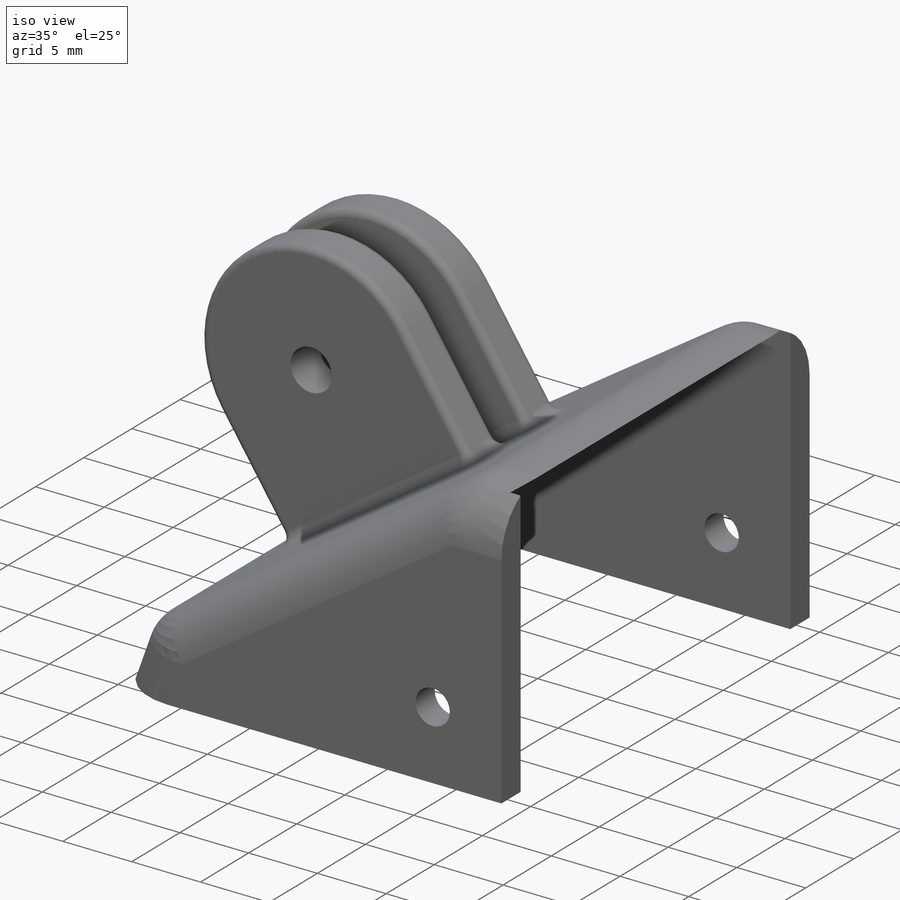
[diagram: iso view]
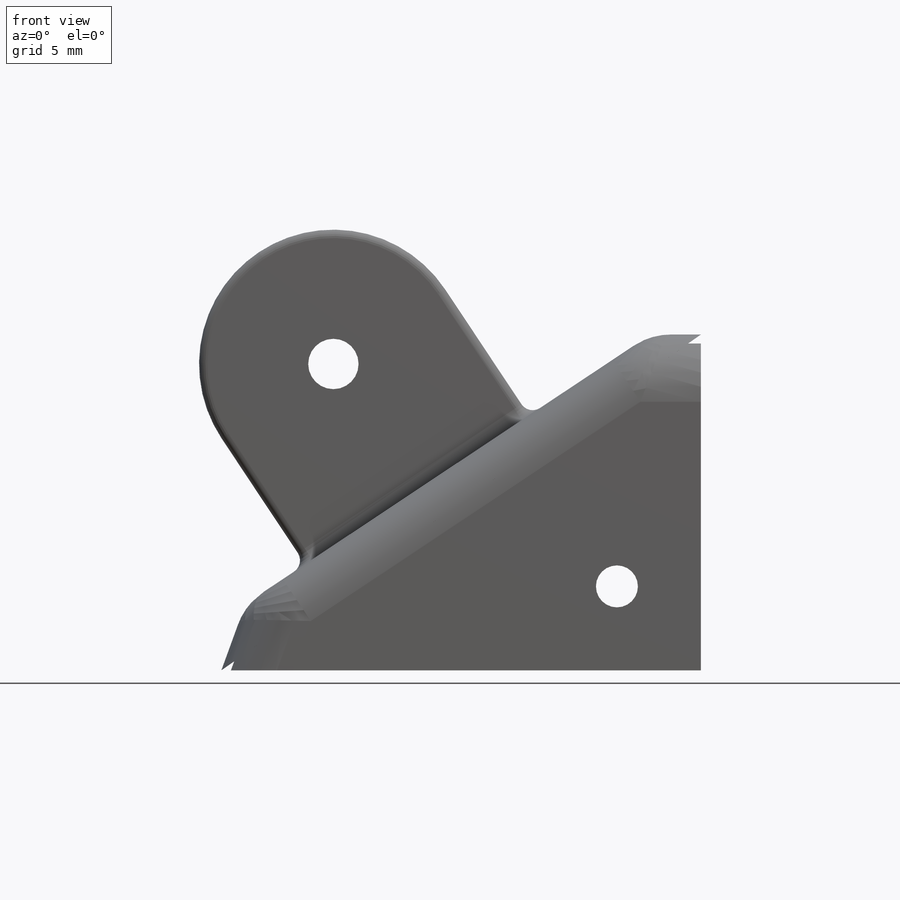
[diagram: front view]
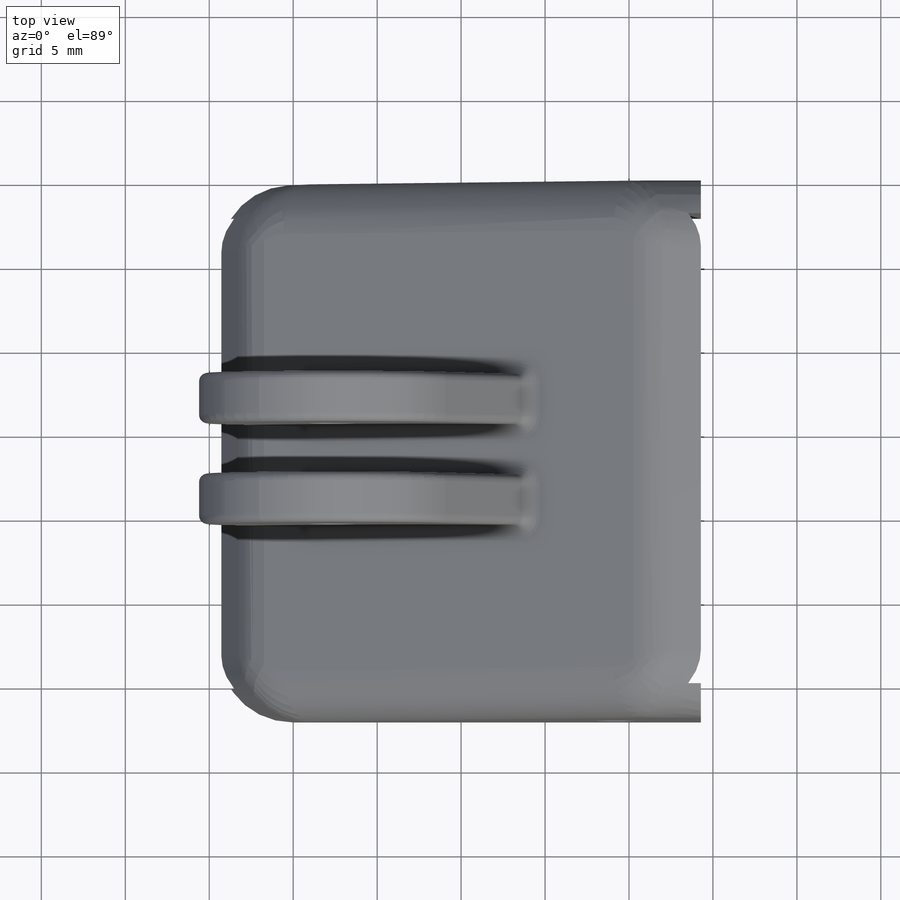
[diagram: top view]
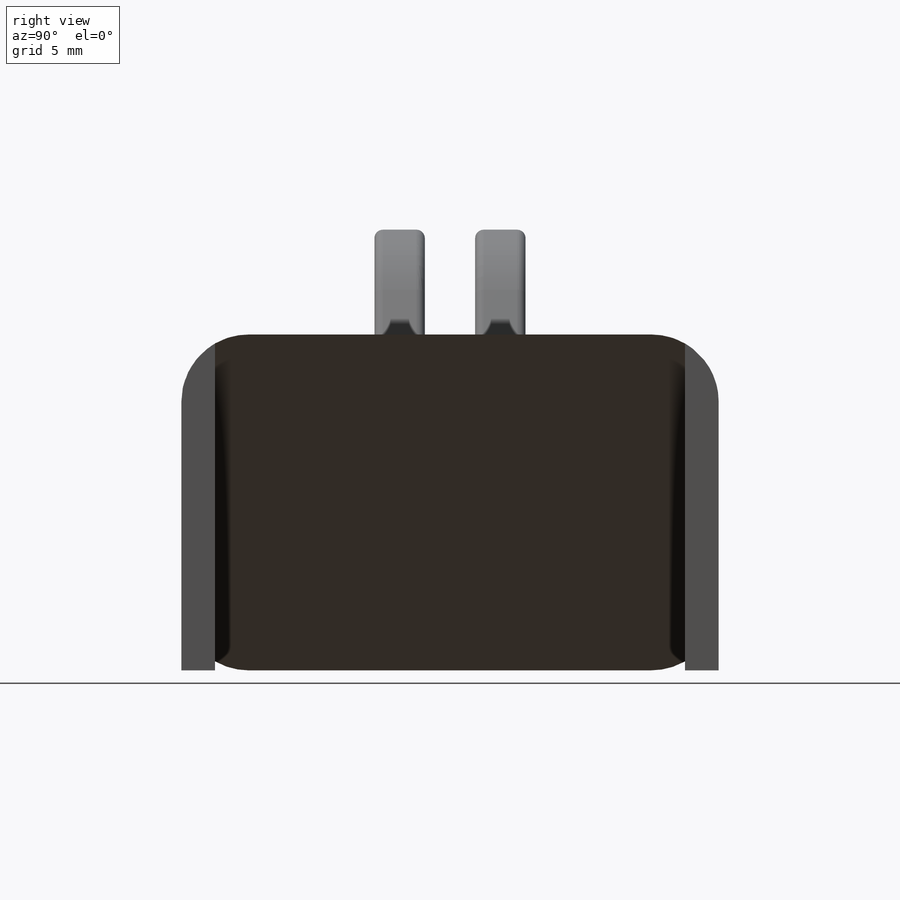
[diagram: right view]
SOLIDWORKS PART (.sldprt)
format: sldprt  version: not decoded by parser v0  size: 474,112 bytes
history: native  units: mm
features: sketch x9, fillet x7, cut_extrude x5, extrude x4, material x1 (+12 scaffold rows collapsed)
feature tree (38):
  scaffold x12  (default folders/planes/origin — collapsed)
  material  "Material <not specified>"
  sketch  "Sketch1"  dims[D1=28.56mm D2=20.0mm]
  extrude  "Boss-Extrude1"  Depth=2mm
  sketch  "Sketch2"  dims[c1.D1=30.0mm c2.D1=35.0deg c2.D2=3.625mm c2.D3=~1.532026mm c3.D2=0.0mm]
  extrude  "Boss-Extrude2"  Depth=28mm
  sketch  "Sketch3"  dims[D1=20.0mm D2=28.56mm]
  extrude  "Boss-Extrude3"  Depth=2mm
  sketch  "Sketch4"  dims[D3=2.5mm D1=5.0mm D2=5.0mm]
  cut_extrude  "Cut-Extrude1"  [1 undecoded]
  sketch  "Sketch5"  dims[c1.D1=3.0mm c1.D2=3.0mm c2.D1=3.0mm]
  cut_extrude  "Cut-Extrude2"  [1 undecoded]
  sketch  "Sketch6"  dims[D1=9.0mm D2=11.5mm D3=16.0mm D4=6.0mm]
  extrude  "Boss-Extrude4"  Depth=17mm
  fillet  "Fillet1"  Radius=8mm
  sketch  "Sketch7"  dims[D3=3.0mm D1=8.0mm D2=8.0mm]
  cut_extrude  "Cut-Extrude3"  [1 undecoded]
  sketch  "Sketch8"  dims[D1=3.0mm D2=3.0mm D3=0.0mm D4=0.0mm]
  cut_extrude  "Cut-Extrude4"  [1 undecoded]
  fillet  "Fillet3"  Radius=0.5mm
  fillet  "Fillet2"  Radius=0.8mm
  sketch  "Sketch9"  dims[c1.D1=~6.824667mm c2.D1=20.0deg]
  cut_extrude  "Cut-Extrude5"  [1 undecoded]
  fillet  "Fillet7"  Radius=3mm
  fillet  "Fillet8"  Radius=3mm
  fillet  "Fillet10"  Radius=4mm
  fillet  "Fillet11"  Radius=4mm
decode coverage: 20 of 25 modeling features carry decoded parameters
note: ~ marks probable driven/reference dimensions
note: 5 parameter values undecoded
summary: no parameter record found for 5 features
note: suppression state not decoded; provenance and decode notes live in map.json
